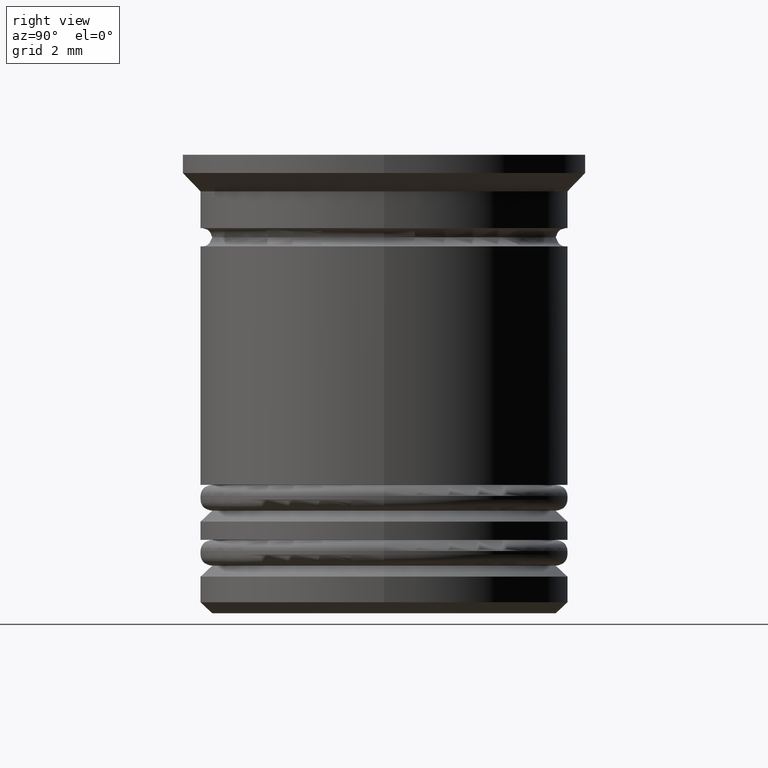
[diagram: clean part render]
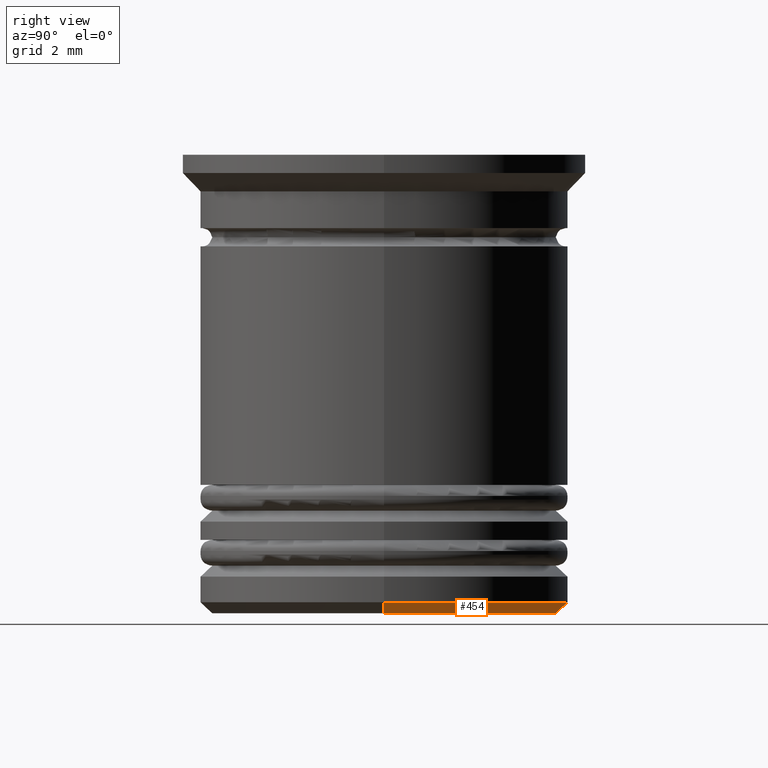
[diagram: same view with one face highlighted and labeled with its STEP entity id]
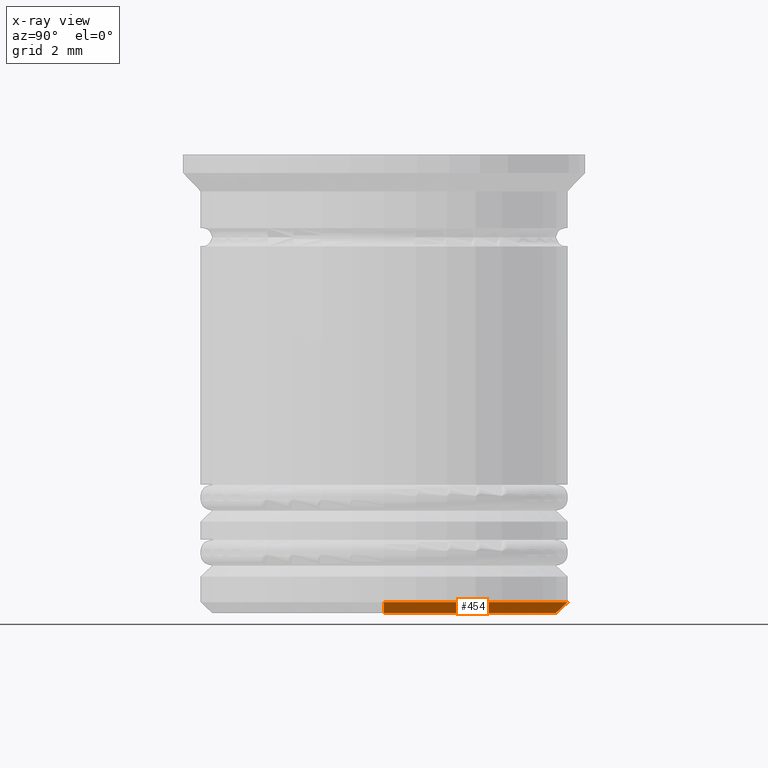
[diagram: x-ray of the same camera — body ghosted, the highlighted face saturated]
A machine part, right view. The second image highlights one B-rep face of the part: STEP entity #454.
The next image is the same camera in x-ray: the body ghosted, the highlighted face saturated — about 0% of this face is hidden behind the body in this view.
In plain terms, the highlighted conical surface has half-angle 45 deg.
Its self-contained STEP definition (entity closure, byte-faithful):
#37 = CONICAL_SURFACE ( 'NONE', #1195, 5.000000000000000888, 0.7853981633974482790 ) ;
#61 = VERTEX_POINT ( 'NONE', #1650 ) ;
#115 = AXIS2_PLACEMENT_3D ( 'NONE', #1504, #1526, #590 ) ;
#120 = DIRECTION ( 'NONE',  ( -1.000000000000000000, 0.000000000000000000, 0.000000000000000000 ) ) ;
#157 = DIRECTION ( 'NONE',  ( -0.7071067811865474617, 8.659560562354932858E-17, 0.7071067811865474617 ) ) ;
#190 = CARTESIAN_POINT ( 'NONE',  ( 5.000000000000000888, 0.000000000000000000, -12.19999999999999929 ) ) ;
#230 = EDGE_CURVE ( 'NONE', #1027, #413, #308, .T. ) ;
#236 = CARTESIAN_POINT ( 'NONE',  ( 0.000000000000000000, 0.000000000000000000, -12.19999999999999929 ) ) ;
#245 = FACE_OUTER_BOUND ( 'NONE', #310, .T. ) ;
#308 = LINE ( 'NONE', #928, #1092 ) ;
#310 = EDGE_LOOP ( 'NONE', ( #1770, #1553, #1421, #1975 ) ) ;
#388 = CIRCLE ( 'NONE', #115, 4.699999999999999289 ) ;
#398 = DIRECTION ( 'NONE',  ( 0.7071067811865474617, 0.000000000000000000, 0.7071067811865474617 ) ) ;
#413 = VERTEX_POINT ( 'NONE', #1201 ) ;
#454 = ADVANCED_FACE ( 'NONE', ( #245 ), #37, .T. ) ;
#590 = DIRECTION ( 'NONE',  ( -1.000000000000000000, 0.000000000000000000, 0.000000000000000000 ) ) ;
#670 = VERTEX_POINT ( 'NONE', #1997 ) ;
#744 = DIRECTION ( 'NONE',  ( 1.000000000000000000, 0.000000000000000000, 0.000000000000000000 ) ) ;
#895 = DIRECTION ( 'NONE',  ( -0.000000000000000000, -0.000000000000000000, 1.000000000000000000 ) ) ;
#922 = EDGE_CURVE ( 'NONE', #61, #670, #994, .T. ) ;
#928 = CARTESIAN_POINT ( 'NONE',  ( -5.000000000000000888, 6.123233995736767268E-16, -12.19999999999999929 ) ) ;
#929 = AXIS2_PLACEMENT_3D ( 'NONE', #1353, #1168, #120 ) ;
#994 = LINE ( 'NONE', #190, #1326 ) ;
#1027 = VERTEX_POINT ( 'NONE', #1357 ) ;
#1092 = VECTOR ( 'NONE', #157, 1000.000000000000114 ) ;
#1168 = DIRECTION ( 'NONE',  ( -0.000000000000000000, -0.000000000000000000, 1.000000000000000000 ) ) ;
#1195 = AXIS2_PLACEMENT_3D ( 'NONE', #236, #895, #744 ) ;
#1201 = CARTESIAN_POINT ( 'NONE',  ( -5.000000000000000888, 6.123233995736767268E-16, -12.19999999999999929 ) ) ;
#1326 = VECTOR ( 'NONE', #398, 1000.000000000000114 ) ;
#1353 = CARTESIAN_POINT ( 'NONE',  ( 0.000000000000000000, 0.000000000000000000, -12.19999999999999929 ) ) ;
#1357 = CARTESIAN_POINT ( 'NONE',  ( -4.699999999999999289, 5.939536975864662969E-16, -12.50000000000000000 ) ) ;
#1421 = ORIENTED_EDGE ( 'NONE', *, *, #1714, .F. ) ;
#1504 = CARTESIAN_POINT ( 'NONE',  ( 0.000000000000000000, 0.000000000000000000, -12.50000000000000000 ) ) ;
#1526 = DIRECTION ( 'NONE',  ( 0.000000000000000000, 0.000000000000000000, -1.000000000000000000 ) ) ;
#1553 = ORIENTED_EDGE ( 'NONE', *, *, #230, .T. ) ;
#1572 = CIRCLE ( 'NONE', #929, 5.000000000000000888 ) ;
#1587 = EDGE_CURVE ( 'NONE', #1027, #61, #388, .T. ) ;
#1650 = CARTESIAN_POINT ( 'NONE',  ( 4.699999999999999289, 0.000000000000000000, -12.50000000000000000 ) ) ;
#1714 = EDGE_CURVE ( 'NONE', #670, #413, #1572, .T. ) ;
#1770 = ORIENTED_EDGE ( 'NONE', *, *, #1587, .F. ) ;
#1975 = ORIENTED_EDGE ( 'NONE', *, *, #922, .F. ) ;
#1997 = CARTESIAN_POINT ( 'NONE',  ( 5.000000000000000888, 0.000000000000000000, -12.19999999999999929 ) ) ;